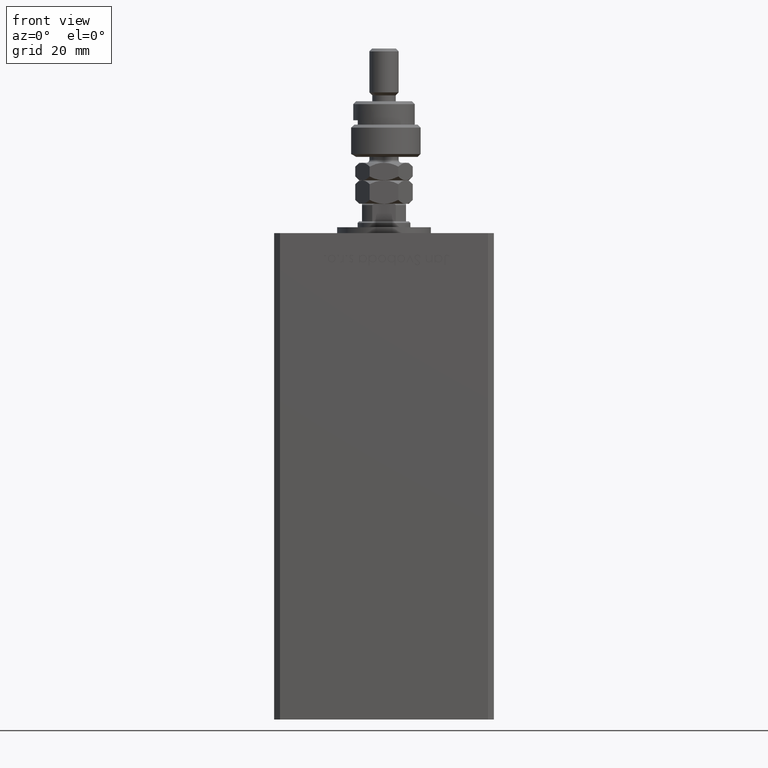
[diagram: clean part render]
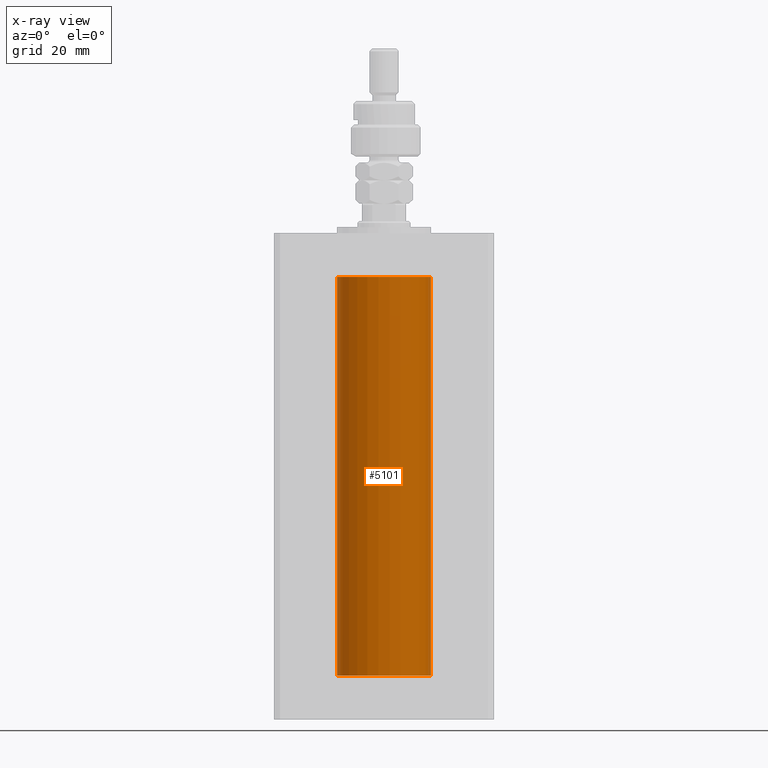
[diagram: x-ray — body ghosted, one internal face saturated and labeled with its STEP entity id]
A machine part, front view, then the same camera in x-ray: the body is ghosted and one INTERNAL B-rep face — a face not visible from any outside direction — is saturated and labeled: STEP entity #5101.
In plain terms, the highlighted cylindrical surface (partial cylindrical patch) has radius 16 mm, axis along (-0, -0, -1).
Its self-contained STEP definition (entity closure, byte-faithful):
#2689 = ORIENTED_EDGE ( 'NONE', *, *, #20280, .T. ) ;
#5101 = ADVANCED_FACE ( 'NONE', ( #40702 ), #53683, .F. ) ;
#7502 = CARTESIAN_POINT ( 'NONE',  ( 16.00000000000000000, 1.959434878635765131E-15, 136.0000000000000000 ) ) ;
#10244 = CIRCLE ( 'NONE', #54358, 16.00000000000000000 ) ;
#10820 = DIRECTION ( 'NONE',  ( 1.000000000000000000, 0.000000000000000000, 0.000000000000000000 ) ) ;
#11806 = EDGE_CURVE ( 'NONE', #49408, #50341, #54427, .T. ) ;
#11992 = DIRECTION ( 'NONE',  ( -0.000000000000000000, -0.000000000000000000, -1.000000000000000000 ) ) ;
#15389 = EDGE_LOOP ( 'NONE', ( #2689, #50536, #43664, #42649 ) ) ;
#19641 = CARTESIAN_POINT ( 'NONE',  ( 0.000000000000000000, 0.000000000000000000, 0.000000000000000000 ) ) ;
#19679 = CARTESIAN_POINT ( 'NONE',  ( 16.00000000000000000, 1.959434878635765131E-15, 136.0000000000000000 ) ) ;
#20274 = CARTESIAN_POINT ( 'NONE',  ( -16.00000000000000000, 0.000000000000000000, 136.0000000000000000 ) ) ;
#20280 = EDGE_CURVE ( 'NONE', #40151, #49408, #10244, .T. ) ;
#20678 = VECTOR ( 'NONE', #45322, 1000.000000000000000 ) ;
#22051 = VECTOR ( 'NONE', #11992, 1000.000000000000000 ) ;
#24384 = DIRECTION ( 'NONE',  ( -0.000000000000000000, -0.000000000000000000, -1.000000000000000000 ) ) ;
#25446 = CARTESIAN_POINT ( 'NONE',  ( 0.000000000000000000, 0.000000000000000000, 136.0000000000000000 ) ) ;
#26019 = DIRECTION ( 'NONE',  ( -1.000000000000000000, 0.000000000000000000, 0.000000000000000000 ) ) ;
#26923 = EDGE_CURVE ( 'NONE', #28147, #50341, #50808, .T. ) ;
#28147 = VERTEX_POINT ( 'NONE', #31111 ) ;
#31111 = CARTESIAN_POINT ( 'NONE',  ( -16.00000000000000000, 0.000000000000000000, 0.000000000000000000 ) ) ;
#32671 = CARTESIAN_POINT ( 'NONE',  ( 0.000000000000000000, 0.000000000000000000, 136.0000000000000000 ) ) ;
#36890 = EDGE_CURVE ( 'NONE', #40151, #28147, #46500, .T. ) ;
#40151 = VERTEX_POINT ( 'NONE', #54571 ) ;
#40702 = FACE_OUTER_BOUND ( 'NONE', #15389, .T. ) ;
#42649 = ORIENTED_EDGE ( 'NONE', *, *, #36890, .F. ) ;
#42660 = CARTESIAN_POINT ( 'NONE',  ( 16.00000000000000000, 1.959434878635765131E-15, 0.000000000000000000 ) ) ;
#43664 = ORIENTED_EDGE ( 'NONE', *, *, #26923, .F. ) ;
#45322 = DIRECTION ( 'NONE',  ( -0.000000000000000000, -0.000000000000000000, -1.000000000000000000 ) ) ;
#45526 = AXIS2_PLACEMENT_3D ( 'NONE', #19641, #52791, #10820 ) ;
#46084 = AXIS2_PLACEMENT_3D ( 'NONE', #32671, #24384, #26019 ) ;
#46500 = LINE ( 'NONE', #20274, #22051 ) ;
#49408 = VERTEX_POINT ( 'NONE', #19679 ) ;
#49780 = DIRECTION ( 'NONE',  ( -0.000000000000000000, 0.000000000000000000, 1.000000000000000000 ) ) ;
#50341 = VERTEX_POINT ( 'NONE', #42660 ) ;
#50536 = ORIENTED_EDGE ( 'NONE', *, *, #11806, .T. ) ;
#50808 = CIRCLE ( 'NONE', #45526, 16.00000000000000000 ) ;
#52791 = DIRECTION ( 'NONE',  ( -0.000000000000000000, 0.000000000000000000, 1.000000000000000000 ) ) ;
#53683 = CYLINDRICAL_SURFACE ( 'NONE', #46084, 16.00000000000000000 ) ;
#54358 = AXIS2_PLACEMENT_3D ( 'NONE', #25446, #49780, #54475 ) ;
#54427 = LINE ( 'NONE', #7502, #20678 ) ;
#54475 = DIRECTION ( 'NONE',  ( 1.000000000000000000, 0.000000000000000000, 0.000000000000000000 ) ) ;
#54571 = CARTESIAN_POINT ( 'NONE',  ( -16.00000000000000000, 0.000000000000000000, 136.0000000000000000 ) ) ;